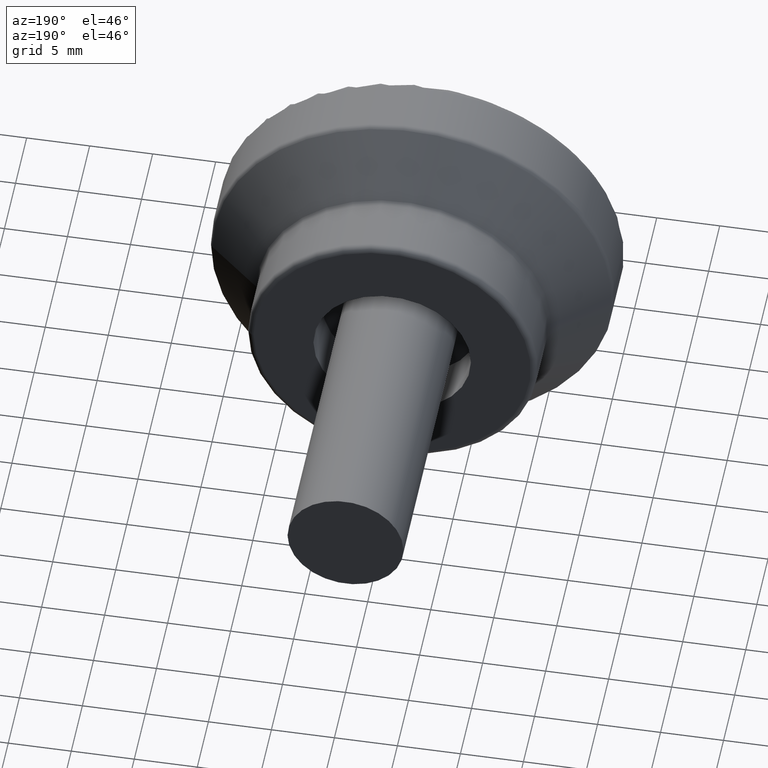
[diagram: clean part render]
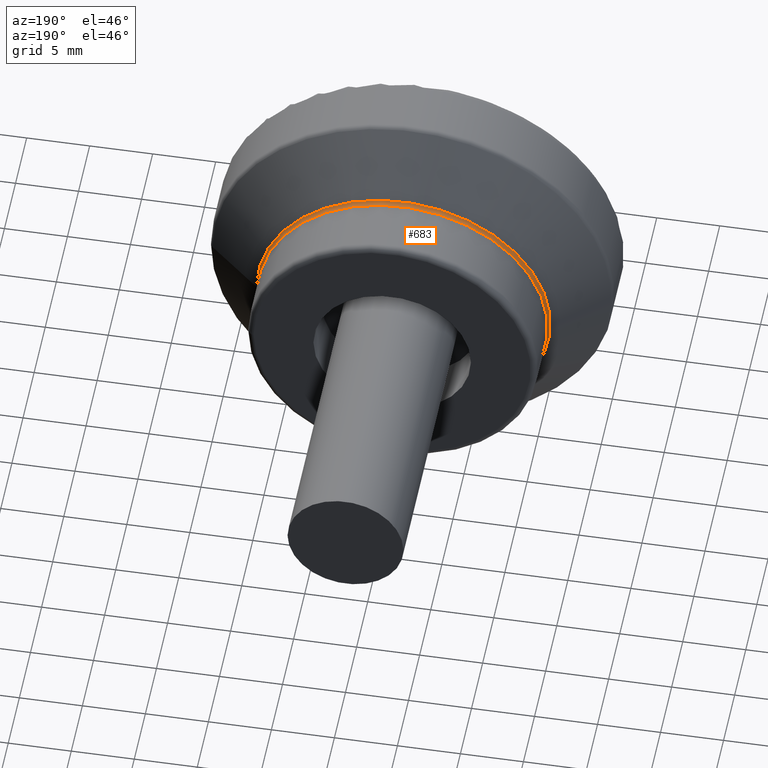
[diagram: same view with one face highlighted and labeled with its STEP entity id]
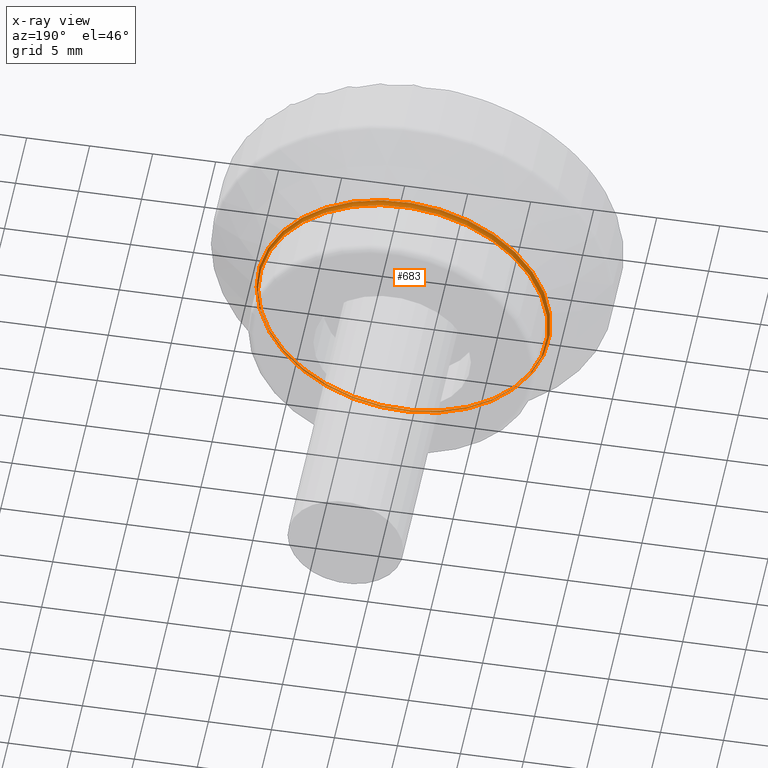
[diagram: x-ray of the same camera — body ghosted, the highlighted face saturated]
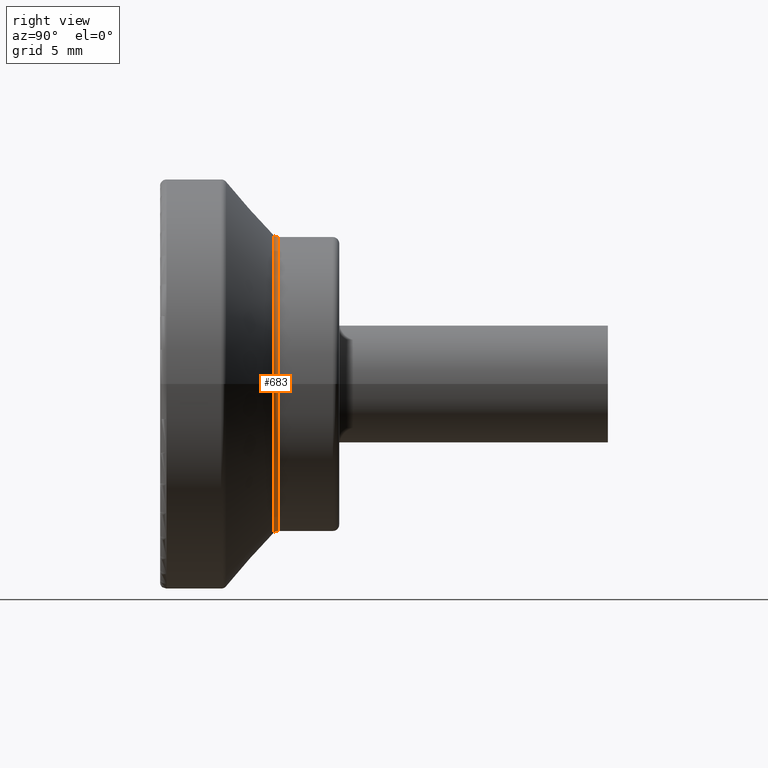
[diagram: same view with one face highlighted and labeled with its STEP entity id]
A machine part, auxiliary view. The second image highlights one B-rep face of the part: STEP entity #683.
The next image is the same camera in x-ray: the body ghosted, the highlighted face saturated — about 22% of this face is hidden behind the body in this view.
A second angle (right view) of the same face is appended — the face is thin or edge-on in the first view.
In plain terms, the highlighted toroidal blend (fillet) surface has major radius 12 mm and minor (blend) radius 0.5 mm.
Its self-contained STEP definition (entity closure, byte-faithful):
#23=FACE_BOUND('',#175,.T.);
#50=CIRCLE('',#749,11.667818080585);
#51=CIRCLE('',#751,11.5);
#71=TOROIDAL_SURFACE('',#750,12.,0.5);
#121=FACE_OUTER_BOUND('',#174,.T.);
#174=EDGE_LOOP('',(#558));
#175=EDGE_LOOP('',(#559));
#354=VERTEX_POINT('',#1293);
#355=VERTEX_POINT('',#1296);
#437=EDGE_CURVE('',#354,#354,#50,.T.);
#438=EDGE_CURVE('',#355,#355,#51,.T.);
#558=ORIENTED_EDGE('',*,*,#438,.T.);
#559=ORIENTED_EDGE('',*,*,#437,.T.);
#683=ADVANCED_FACE('',(#121,#23),#71,.F.);
#749=AXIS2_PLACEMENT_3D('',#1294,#917,#918);
#750=AXIS2_PLACEMENT_3D('',#1295,#919,#920);
#751=AXIS2_PLACEMENT_3D('',#1297,#921,#922);
#917=DIRECTION('center_axis',(0.,1.,0.));
#918=DIRECTION('ref_axis',(-1.,0.,0.));
#919=DIRECTION('center_axis',(6.34413156928661E-17,-1.,0.));
#920=DIRECTION('ref_axis',(0.,0.,-1.));
#921=DIRECTION('center_axis',(6.34413156928661E-17,-1.,0.));
#922=DIRECTION('ref_axis',(-1.,-6.3355118253066E-17,1.22464679914735E-16));
#1293=CARTESIAN_POINT('',(11.667818080585,8.8508283728133,-2.85779121308442E-15));
#1294=CARTESIAN_POINT('Origin',(0.,8.8508283728133,-1.42889560654221E-15));
#1295=CARTESIAN_POINT('Origin',(-5.85216512212225E-16,9.22453303215513,
0.));
#1296=CARTESIAN_POINT('',(11.5,9.22453303215513,0.));
#1297=CARTESIAN_POINT('Origin',(-5.85216512212225E-16,9.22453303215513,
0.));